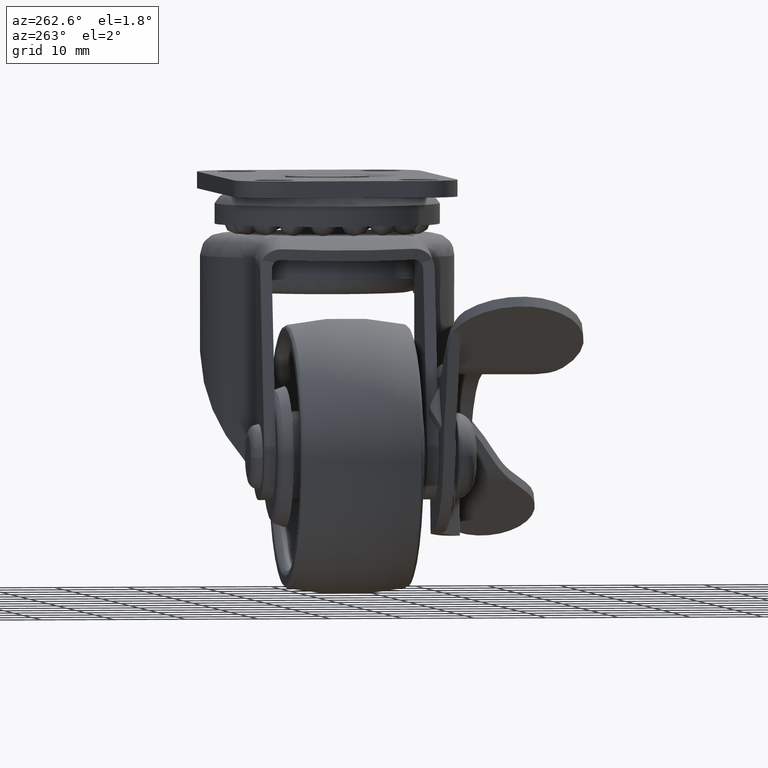
[diagram: clean part render]
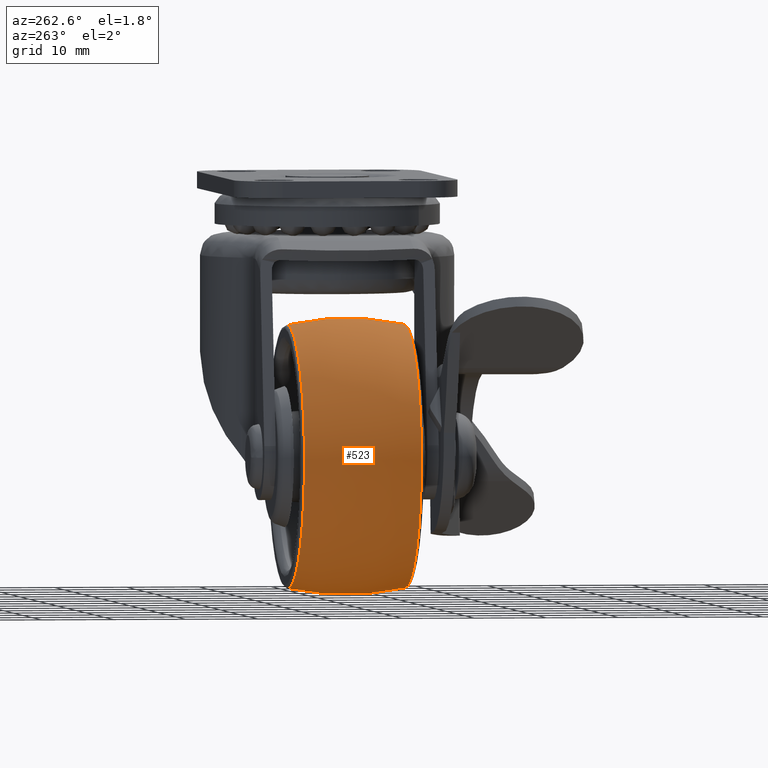
[diagram: same view with one face highlighted and labeled with its STEP entity id]
A machine part, auxiliary view. The second image highlights one B-rep face of the part: STEP entity #523.
In plain terms, the highlighted face is a freeform B-spline surface patch.
Its self-contained STEP definition (entity closure, byte-faithful):
#523=ADVANCED_FACE('',(#3229),#3228,.T.);
#3228=( BOUNDED_SURFACE() B_SPLINE_SURFACE( 2,2,((#6644,#6645,#6646,#6647,#6648),(#6649,#6650,#6651,#6652,#6653),(#6654,#6655,#6656,#6657,#6658)), .UNSPECIFIED.,.F.,.F.,.F.) B_SPLINE_SURFACE_WITH_KNOTS((3,3),(3,2,3),(-2.14985602091E-01,2.14985576989E-01),(0.00000000000E+00,1.57079632679E+00,3.14159265359E+00), .UNSPECIFIED. ) GEOMETRIC_REPRESENTATION_ITEM() RATIONAL_B_SPLINE_SURFACE(((1.00000000000E+00,7.07106781187E-01,1.00000000000E+00,7.07106781187E-01,1.00000000000E+00),(9.76979468540E-01,6.90828807285E-01,9.76979468540E-01,6.90828807285E-01,9.76979468540E-01),(1.00000000000E+00,7.07106781187E-01,1.00000000000E+00,7.07106781187E-01,1.00000000000E+00))) REPRESENTATION_ITEM('') SURFACE() );
#3229=FACE_OUTER_BOUND('',#6659,.T.);
#6644=CARTESIAN_POINT('',(-8.10666666681E+00,2.99510690553E-14,-1.81252197360E+01));
#6645=CARTESIAN_POINT('',(-8.10666666681E+00,-1.81252197360E+01,-1.81252197360E+01));
#6646=CARTESIAN_POINT('',(-8.10666666681E+00,-1.81252197360E+01,-7.04717315638E-15));
#6647=CARTESIAN_POINT('',(-8.10666666681E+00,-1.81252197360E+01,1.81252197360E+01));
#6648=CARTESIAN_POINT('',(-8.10666666681E+00,1.38524934174E-14,1.81252197360E+01));
#6649=CARTESIAN_POINT('',(-2.22178322566E-08,1.66490142107E-14,-1.98953925075E+01));
#6650=CARTESIAN_POINT('',(-2.22178668318E-08,-1.98953925075E+01,-1.98953925075E+01));
#6651=CARTESIAN_POINT('',(-2.22178754756E-08,-1.98953925075E+01,-4.31125078541E-15));
#6652=CARTESIAN_POINT('',(-2.22178841194E-08,-1.98953925075E+01,1.98953925075E+01));
#6653=CARTESIAN_POINT('',(-2.22178495442E-08,-1.02180500103E-15,1.98953925075E+01));
#6654=CARTESIAN_POINT('',(8.10666666681E+00,1.77471580542E-15,-1.81252199395E+01));
#6655=CARTESIAN_POINT('',(8.10666666681E+00,-1.81252199395E+01,-1.81252199395E+01));
#6656=CARTESIAN_POINT('',(8.10666666681E+00,-1.81252199395E+01,-3.08491167767E-18));
#6657=CARTESIAN_POINT('',(8.10666666681E+00,-1.81252199395E+01,1.81252199395E+01));
#6658=CARTESIAN_POINT('',(8.10666666681E+00,-1.43238600132E-14,1.81252199395E+01));
#6659=EDGE_LOOP('',(#8078,#8079,#8080,#8081));
#8078=ORIENTED_EDGE('',*,*,#8788,.F.);
#8079=ORIENTED_EDGE('',*,*,#8789,.T.);
#8080=ORIENTED_EDGE('',*,*,#8781,.T.);
#8081=ORIENTED_EDGE('',*,*,#8790,.F.);
#8781=EDGE_CURVE('',#13422,#13423,#13424,.T.);
#8788=EDGE_CURVE('',#13455,#13448,#13468,.T.);
#8789=EDGE_CURVE('',#13455,#13422,#13474,.T.);
#8790=EDGE_CURVE('',#13448,#13423,#13480,.T.);
#13422=VERTEX_POINT('',#18359);
#13423=VERTEX_POINT('',#18360);
#13424=CIRCLE('',#18364,1.81252197360E+01);
#13448=VERTEX_POINT('',#18376);
#13455=VERTEX_POINT('',#18380);
#13468=CIRCLE('',#18392,1.81252197360E+01);
#13474=(BOUNDED_CURVE() B_SPLINE_CURVE(2,(#18393,#18394,#18395),.UNSPECIFIED.,.F.,.F.) B_SPLINE_CURVE_WITH_KNOTS((3,3),(-2.14985602091E-01,2.14985576989E-01),.UNSPECIFIED.) CURVE() GEOMETRIC_REPRESENTATION_ITEM() RATIONAL_B_SPLINE_CURVE((1.00000000000E+00,9.76979468540E-01,1.00000000000E+00)) REPRESENTATION_ITEM('') );
#13480=(BOUNDED_CURVE() B_SPLINE_CURVE(2,(#18396,#18397,#18398),.UNSPECIFIED.,.F.,.F.) B_SPLINE_CURVE_WITH_KNOTS((3,3),(-2.14985602091E-01,2.14985576989E-01),.UNSPECIFIED.) CURVE() GEOMETRIC_REPRESENTATION_ITEM() RATIONAL_B_SPLINE_CURVE((1.00000000000E+00,9.76979468540E-01,1.00000000000E+00)) REPRESENTATION_ITEM('') );
#18359=CARTESIAN_POINT('',(8.10666666681E+00,-5.92118946467E-16,-1.81252197360E+01));
#18360=CARTESIAN_POINT('',(8.10666666681E+00,-3.99598276471E-15,1.81252197360E+01));
#18361=CARTESIAN_POINT('',(8.10666666681E+00,0.00000000000E+00,0.00000000000E+00));
#18362=DIRECTION('',(-1.00000000000E+00,0.00000000000E+00,0.00000000000E+00));
#18363=DIRECTION('',(-0.00000000000E+00,-9.80047064407E-17,1.00000000000E+00));
#18364=AXIS2_PLACEMENT_3D('',#18361,#18362,#18363);
#18376=CARTESIAN_POINT('',(-8.10666666681E+00,0.00000000000E+00,1.81252197360E+01));
#18380=CARTESIAN_POINT('',(-8.10666666681E+00,3.31586610021E-14,-1.81252197360E+01));
#18389=CARTESIAN_POINT('',(-8.10666666681E+00,0.00000000000E+00,0.00000000000E+00));
#18390=DIRECTION('',(-1.00000000000E+00,0.00000000000E+00,0.00000000000E+00));
#18391=DIRECTION('',(0.00000000000E+00,-1.22460635382E-16,1.00000000000E+00));
#18392=AXIS2_PLACEMENT_3D('',#18389,#18390,#18391);
#18393=CARTESIAN_POINT('',(-8.10666666681E+00,2.99510690553E-14,-1.81252197360E+01));
#18394=CARTESIAN_POINT('',(-2.22178322566E-08,1.66490142107E-14,-1.98953925075E+01));
#18395=CARTESIAN_POINT('',(8.10666666681E+00,1.77471580542E-15,-1.81252199395E+01));
#18396=CARTESIAN_POINT('',(-8.10666666681E+00,1.38524934174E-14,1.81252197360E+01));
#18397=CARTESIAN_POINT('',(-2.22178495442E-08,-1.02180500103E-15,1.98953925075E+01));
#18398=CARTESIAN_POINT('',(8.10666666681E+00,-1.43238600132E-14,1.81252199395E+01));